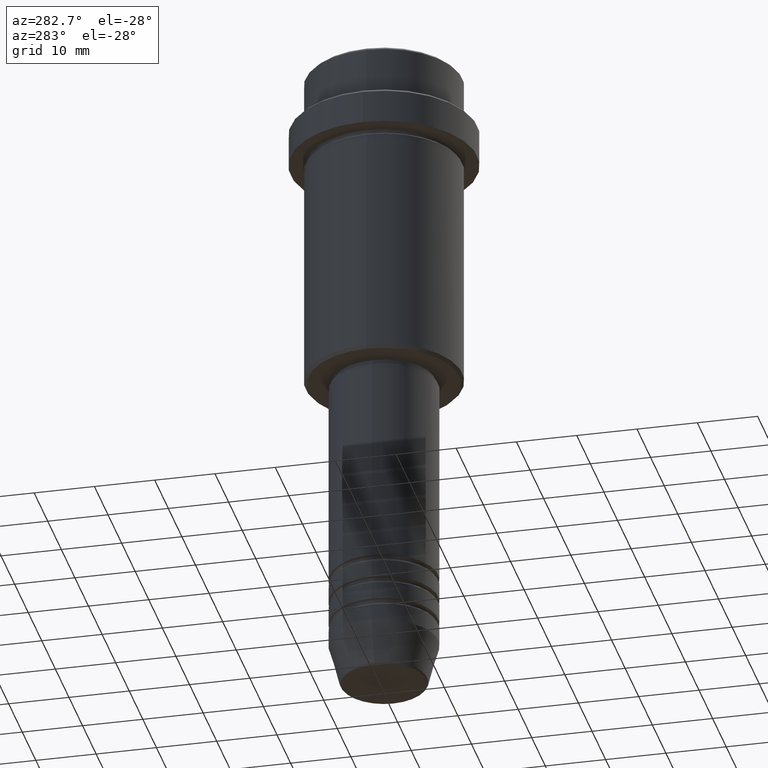
[diagram: clean part render]
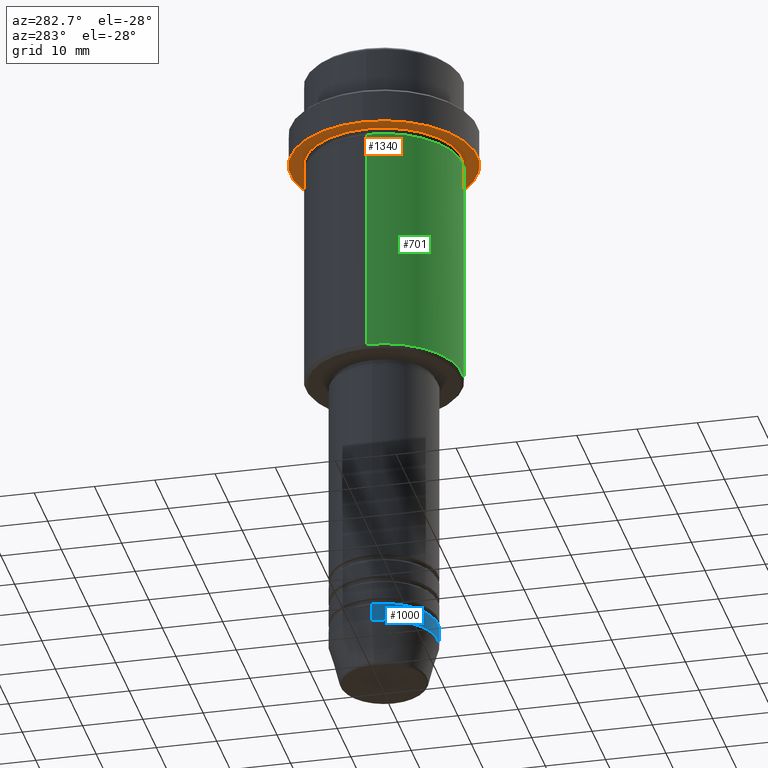
[diagram: same view with three faces highlighted in distinct colors, each labeled with its STEP entity id]
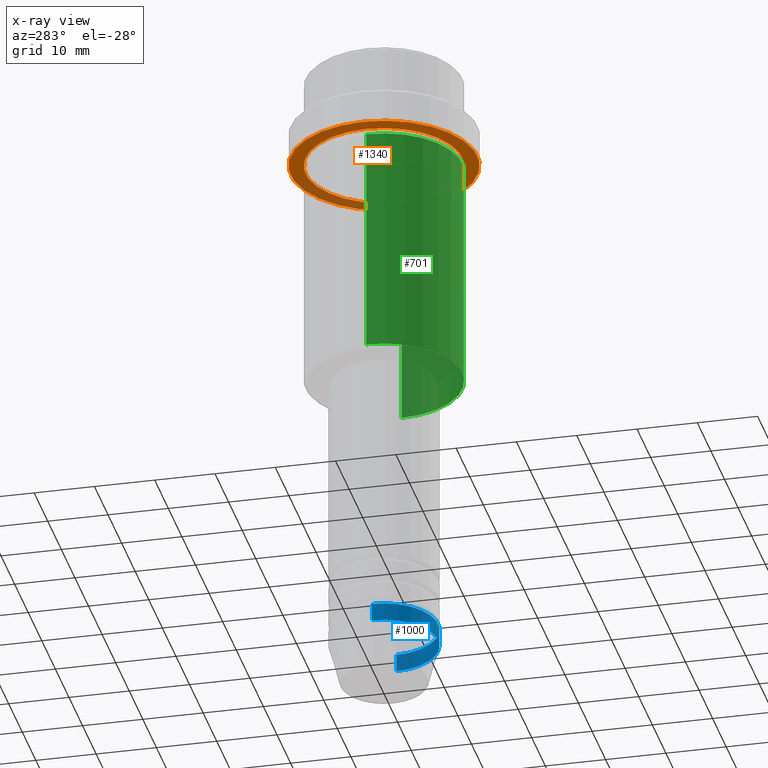
[diagram: x-ray of the same camera — body ghosted, the three highlighted faces saturated]
A machine part, auxiliary view with three faces highlighted in distinct colors.
The next image is the same camera in x-ray (body ghosted, the three faces saturated) — at least one of them is partly hidden behind the body in this view.
Their STEP definitions:

[orange] entity #1340 — the highlighted planar face has unit normal (0, 0, -1).
#4 = FACE_OUTER_BOUND ( 'NONE', #335, .T. ) ;
#17 = EDGE_LOOP ( 'NONE', ( #1398, #460 ) ) ;
#100 = CARTESIAN_POINT ( 'NONE',  ( 0.000000000000000000, 0.000000000000000000, -15.00000000000000178 ) ) ;
#113 = DIRECTION ( 'NONE',  ( 0.000000000000000000, 0.000000000000000000, -1.000000000000000000 ) ) ;
#176 = CARTESIAN_POINT ( 'NONE',  ( 0.000000000000000000, 0.000000000000000000, -15.00000000000000178 ) ) ;
#198 = CARTESIAN_POINT ( 'NONE',  ( -15.50000000000000000, 1.898202538678397557E-15, -15.00000000000000178 ) ) ;
#200 = CARTESIAN_POINT ( 'NONE',  ( 0.000000000000000000, 0.000000000000000000, -15.00000000000000000 ) ) ;
#206 = DIRECTION ( 'NONE',  ( -0.000000000000000000, -0.000000000000000000, 1.000000000000000000 ) ) ;
#289 = DIRECTION ( 'NONE',  ( 1.000000000000000000, 0.000000000000000000, 0.000000000000000000 ) ) ;
#324 = DIRECTION ( 'NONE',  ( -0.000000000000000000, -0.000000000000000000, 1.000000000000000000 ) ) ;
#335 = EDGE_LOOP ( 'NONE', ( #1202, #1364 ) ) ;
#337 = EDGE_CURVE ( 'NONE', #1017, #801, #1120, .T. ) ;
#343 = CARTESIAN_POINT ( 'NONE',  ( 15.50000000000000000, 0.000000000000000000, -15.00000000000000178 ) ) ;
#367 = AXIS2_PLACEMENT_3D ( 'NONE', #100, #1408, #868 ) ;
#410 = AXIS2_PLACEMENT_3D ( 'NONE', #748, #324, #1071 ) ;
#460 = ORIENTED_EDGE ( 'NONE', *, *, #762, .T. ) ;
#611 = EDGE_CURVE ( 'NONE', #975, #1195, #621, .T. ) ;
#621 = CIRCLE ( 'NONE', #1306, 15.50000000000000000 ) ;
#718 = CIRCLE ( 'NONE', #367, 15.50000000000000000 ) ;
#738 = AXIS2_PLACEMENT_3D ( 'NONE', #767, #113, #994 ) ;
#748 = CARTESIAN_POINT ( 'NONE',  ( 0.000000000000000000, 0.000000000000000000, -15.00000000000000000 ) ) ;
#762 = EDGE_CURVE ( 'NONE', #801, #1017, #1400, .T. ) ;
#767 = CARTESIAN_POINT ( 'NONE',  ( 0.000000000000000000, 15.50000000000000000, -15.00000000000000000 ) ) ;
#801 = VERTEX_POINT ( 'NONE', #854 ) ;
#854 = CARTESIAN_POINT ( 'NONE',  ( 12.99999999999999467, 1.592040838891558504E-15, -15.00000000000000000 ) ) ;
#868 = DIRECTION ( 'NONE',  ( 1.000000000000000000, 0.000000000000000000, 0.000000000000000000 ) ) ;
#975 = VERTEX_POINT ( 'NONE', #343 ) ;
#979 = DIRECTION ( 'NONE',  ( -1.000000000000000000, 0.000000000000000000, 0.000000000000000000 ) ) ;
#994 = DIRECTION ( 'NONE',  ( -1.000000000000000000, 0.000000000000000000, -0.000000000000000000 ) ) ;
#1017 = VERTEX_POINT ( 'NONE', #1204 ) ;
#1027 = FACE_BOUND ( 'NONE', #17, .T. ) ;
#1071 = DIRECTION ( 'NONE',  ( -1.000000000000000000, 0.000000000000000000, 0.000000000000000000 ) ) ;
#1120 = CIRCLE ( 'NONE', #1143, 12.99999999999999467 ) ;
#1143 = AXIS2_PLACEMENT_3D ( 'NONE', #200, #206, #979 ) ;
#1195 = VERTEX_POINT ( 'NONE', #198 ) ;
#1202 = ORIENTED_EDGE ( 'NONE', *, *, #611, .F. ) ;
#1204 = CARTESIAN_POINT ( 'NONE',  ( -12.99999999999999467, 0.000000000000000000, -15.00000000000000000 ) ) ;
#1251 = PLANE ( 'NONE',  #738 ) ;
#1306 = AXIS2_PLACEMENT_3D ( 'NONE', #176, #1358, #289 ) ;
#1313 = EDGE_CURVE ( 'NONE', #1195, #975, #718, .T. ) ;
#1340 = ADVANCED_FACE ( 'NONE', ( #1027, #4 ), #1251, .T. ) ;
#1358 = DIRECTION ( 'NONE',  ( -0.000000000000000000, -0.000000000000000000, 1.000000000000000000 ) ) ;
#1364 = ORIENTED_EDGE ( 'NONE', *, *, #1313, .F. ) ;
#1398 = ORIENTED_EDGE ( 'NONE', *, *, #337, .T. ) ;
#1400 = CIRCLE ( 'NONE', #410, 12.99999999999999467 ) ;
#1408 = DIRECTION ( 'NONE',  ( -0.000000000000000000, -0.000000000000000000, 1.000000000000000000 ) ) ;

[blue] entity #1000 — the highlighted cylindrical surface (partial cylindrical patch) has radius 9 mm, axis along (-0, -0, 1).
#21 = DIRECTION ( 'NONE',  ( -0.000000000000000000, -0.000000000000000000, 1.000000000000000000 ) ) ;
#46 = ORIENTED_EDGE ( 'NONE', *, *, #83, .F. ) ;
#75 = EDGE_LOOP ( 'NONE', ( #46, #1164, #228, #1159 ) ) ;
#83 = EDGE_CURVE ( 'NONE', #559, #416, #348, .T. ) ;
#132 = CARTESIAN_POINT ( 'NONE',  ( 0.000000000000000000, 0.000000000000000000, -100.0000000000000000 ) ) ;
#228 = ORIENTED_EDGE ( 'NONE', *, *, #574, .T. ) ;
#244 = DIRECTION ( 'NONE',  ( -0.000000000000000000, -0.000000000000000000, 1.000000000000000000 ) ) ;
#275 = VECTOR ( 'NONE', #356, 1000.000000000000000 ) ;
#338 = LINE ( 'NONE', #910, #275 ) ;
#348 = LINE ( 'NONE', #469, #617 ) ;
#351 = DIRECTION ( 'NONE',  ( -0.000000000000000000, -0.000000000000000000, 1.000000000000000000 ) ) ;
#355 = FACE_OUTER_BOUND ( 'NONE', #75, .T. ) ;
#356 = DIRECTION ( 'NONE',  ( -0.000000000000000000, -0.000000000000000000, 1.000000000000000000 ) ) ;
#416 = VERTEX_POINT ( 'NONE', #743 ) ;
#458 = EDGE_CURVE ( 'NONE', #559, #794, #780, .T. ) ;
#469 = CARTESIAN_POINT ( 'NONE',  ( -9.000000000000000000, 1.102182119232617714E-15, 0.000000000000000000 ) ) ;
#502 = AXIS2_PLACEMENT_3D ( 'NONE', #132, #797, #567 ) ;
#504 = AXIS2_PLACEMENT_3D ( 'NONE', #1223, #244, #682 ) ;
#559 = VERTEX_POINT ( 'NONE', #1012 ) ;
#567 = DIRECTION ( 'NONE',  ( 1.000000000000000000, 0.000000000000000000, 0.000000000000000000 ) ) ;
#574 = EDGE_CURVE ( 'NONE', #794, #1201, #338, .T. ) ;
#581 = EDGE_CURVE ( 'NONE', #416, #1201, #668, .T. ) ;
#617 = VECTOR ( 'NONE', #21, 1000.000000000000000 ) ;
#668 = CIRCLE ( 'NONE', #502, 9.000000000000000000 ) ;
#682 = DIRECTION ( 'NONE',  ( 1.000000000000000000, 0.000000000000000000, 0.000000000000000000 ) ) ;
#688 = AXIS2_PLACEMENT_3D ( 'NONE', #1212, #351, #775 ) ;
#743 = CARTESIAN_POINT ( 'NONE',  ( -9.000000000000000000, 1.102182119232617714E-15, -100.0000000000000000 ) ) ;
#775 = DIRECTION ( 'NONE',  ( 1.000000000000000000, 0.000000000000000000, 0.000000000000000000 ) ) ;
#780 = CIRCLE ( 'NONE', #688, 9.000000000000000000 ) ;
#794 = VERTEX_POINT ( 'NONE', #978 ) ;
#797 = DIRECTION ( 'NONE',  ( -0.000000000000000000, -0.000000000000000000, 1.000000000000000000 ) ) ;
#851 = CARTESIAN_POINT ( 'NONE',  ( 9.000000000000000000, 0.000000000000000000, -100.0000000000000000 ) ) ;
#910 = CARTESIAN_POINT ( 'NONE',  ( 9.000000000000000000, 0.000000000000000000, 0.000000000000000000 ) ) ;
#978 = CARTESIAN_POINT ( 'NONE',  ( 9.000000000000000000, 0.000000000000000000, -103.0000000000000142 ) ) ;
#1000 = ADVANCED_FACE ( 'NONE', ( #355 ), #1228, .T. ) ;
#1012 = CARTESIAN_POINT ( 'NONE',  ( -9.000000000000000000, 1.102182119232617714E-15, -103.0000000000000142 ) ) ;
#1159 = ORIENTED_EDGE ( 'NONE', *, *, #581, .F. ) ;
#1164 = ORIENTED_EDGE ( 'NONE', *, *, #458, .T. ) ;
#1201 = VERTEX_POINT ( 'NONE', #851 ) ;
#1212 = CARTESIAN_POINT ( 'NONE',  ( 0.000000000000000000, 0.000000000000000000, -103.0000000000000142 ) ) ;
#1223 = CARTESIAN_POINT ( 'NONE',  ( 0.000000000000000000, 0.000000000000000000, 0.000000000000000000 ) ) ;
#1228 = CYLINDRICAL_SURFACE ( 'NONE', #504, 9.000000000000000000 ) ;

[green] entity #701 — the highlighted cylindrical surface (partial cylindrical patch) has radius 13 mm, axis along (-0, -0, 1).
#3 = ORIENTED_EDGE ( 'NONE', *, *, #1184, .T. ) ;
#61 = CYLINDRICAL_SURFACE ( 'NONE', #101, 13.00000000000000000 ) ;
#95 = LINE ( 'NONE', #523, #253 ) ;
#101 = AXIS2_PLACEMENT_3D ( 'NONE', #1264, #283, #262 ) ;
#133 = ORIENTED_EDGE ( 'NONE', *, *, #844, .T. ) ;
#180 = EDGE_CURVE ( 'NONE', #1068, #1062, #496, .T. ) ;
#204 = DIRECTION ( 'NONE',  ( -0.000000000000000000, -0.000000000000000000, 1.000000000000000000 ) ) ;
#213 = AXIS2_PLACEMENT_3D ( 'NONE', #949, #874, #753 ) ;
#253 = VECTOR ( 'NONE', #984, 1000.000000000000000 ) ;
#262 = DIRECTION ( 'NONE',  ( 1.000000000000000000, 0.000000000000000000, 0.000000000000000000 ) ) ;
#283 = DIRECTION ( 'NONE',  ( -0.000000000000000000, -0.000000000000000000, 1.000000000000000000 ) ) ;
#382 = ORIENTED_EDGE ( 'NONE', *, *, #1301, .F. ) ;
#466 = CARTESIAN_POINT ( 'NONE',  ( 13.00000000000000000, 0.000000000000000000, -16.00000000000000000 ) ) ;
#496 = LINE ( 'NONE', #622, #876 ) ;
#505 = CIRCLE ( 'NONE', #991, 13.00000000000000000 ) ;
#515 = DIRECTION ( 'NONE',  ( 1.000000000000000000, 0.000000000000000000, 0.000000000000000000 ) ) ;
#523 = CARTESIAN_POINT ( 'NONE',  ( 13.00000000000000000, 0.000000000000000000, 0.000000000000000000 ) ) ;
#531 = CARTESIAN_POINT ( 'NONE',  ( 0.000000000000000000, 0.000000000000000000, -16.00000000000000000 ) ) ;
#543 = VERTEX_POINT ( 'NONE', #556 ) ;
#556 = CARTESIAN_POINT ( 'NONE',  ( 13.00000000000000000, 0.000000000000000000, -54.49999999999999289 ) ) ;
#622 = CARTESIAN_POINT ( 'NONE',  ( -13.00000000000000000, 1.592040838891559095E-15, 0.000000000000000000 ) ) ;
#701 = ADVANCED_FACE ( 'NONE', ( #1248 ), #61, .T. ) ;
#753 = DIRECTION ( 'NONE',  ( -1.000000000000000000, 0.000000000000000000, 0.000000000000000000 ) ) ;
#844 = EDGE_CURVE ( 'NONE', #543, #1111, #95, .T. ) ;
#874 = DIRECTION ( 'NONE',  ( -0.000000000000000000, -0.000000000000000000, 1.000000000000000000 ) ) ;
#876 = VECTOR ( 'NONE', #1382, 1000.000000000000000 ) ;
#949 = CARTESIAN_POINT ( 'NONE',  ( 0.000000000000000000, 0.000000000000000000, -54.49999999999999289 ) ) ;
#984 = DIRECTION ( 'NONE',  ( -0.000000000000000000, -0.000000000000000000, 1.000000000000000000 ) ) ;
#991 = AXIS2_PLACEMENT_3D ( 'NONE', #531, #204, #515 ) ;
#1062 = VERTEX_POINT ( 'NONE', #1239 ) ;
#1068 = VERTEX_POINT ( 'NONE', #1355 ) ;
#1111 = VERTEX_POINT ( 'NONE', #466 ) ;
#1145 = EDGE_LOOP ( 'NONE', ( #1317, #3, #133, #382 ) ) ;
#1184 = EDGE_CURVE ( 'NONE', #1068, #543, #1216, .T. ) ;
#1216 = CIRCLE ( 'NONE', #213, 13.00000000000000000 ) ;
#1239 = CARTESIAN_POINT ( 'NONE',  ( -13.00000000000000000, 1.592040838891559095E-15, -16.00000000000000000 ) ) ;
#1248 = FACE_OUTER_BOUND ( 'NONE', #1145, .T. ) ;
#1264 = CARTESIAN_POINT ( 'NONE',  ( 0.000000000000000000, 0.000000000000000000, 0.000000000000000000 ) ) ;
#1301 = EDGE_CURVE ( 'NONE', #1062, #1111, #505, .T. ) ;
#1317 = ORIENTED_EDGE ( 'NONE', *, *, #180, .F. ) ;
#1355 = CARTESIAN_POINT ( 'NONE',  ( -13.00000000000000000, 1.592040838891559095E-15, -54.49999999999999289 ) ) ;
#1382 = DIRECTION ( 'NONE',  ( -0.000000000000000000, -0.000000000000000000, 1.000000000000000000 ) ) ;